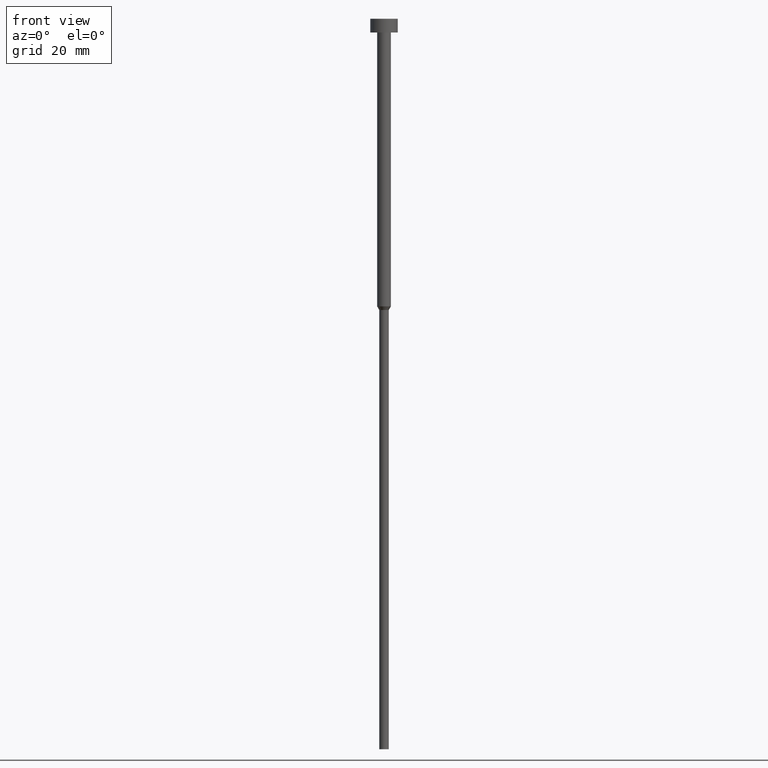
[diagram: clean part render]
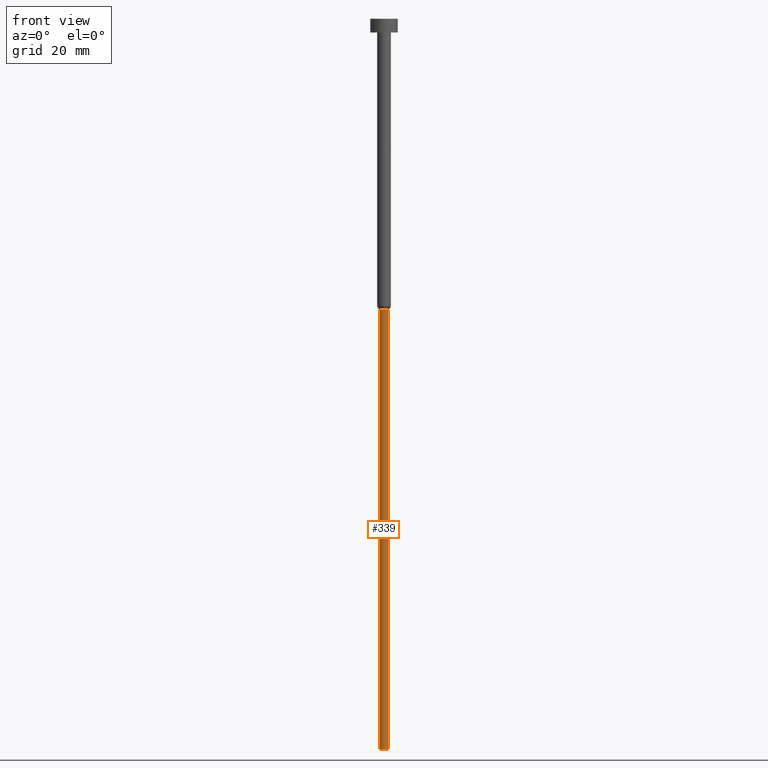
[diagram: same view with one face highlighted and labeled with its STEP entity id]
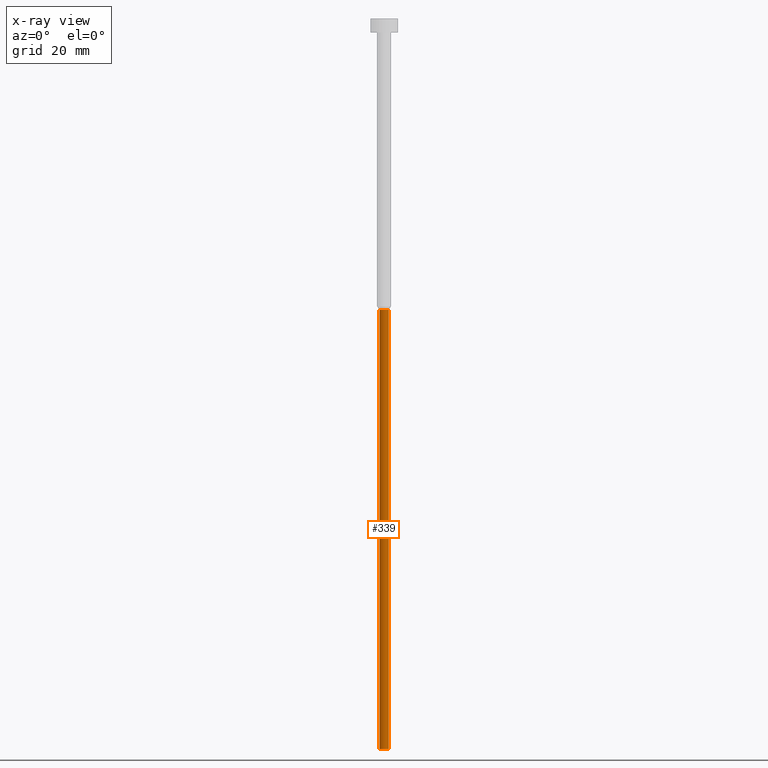
[diagram: x-ray of the same camera — body ghosted, the highlighted face saturated]
A machine part, front view. The second image highlights one B-rep face of the part: STEP entity #339.
The next image is the same camera in x-ray: the body ghosted, the highlighted face saturated — about 0% of this face is hidden behind the body in this view.
In plain terms, the highlighted cylindrical surface (edge-blend (fillet) strip) has radius 1.05 mm, axis along (-0, -0, 1).
Its self-contained STEP definition (entity closure, byte-faithful):
#2 = EDGE_CURVE ( 'NONE', #33, #271, #21, .T. ) ;
#21 = LINE ( 'NONE', #274, #55 ) ;
#28 = AXIS2_PLACEMENT_3D ( 'NONE', #126, #259, #327 ) ;
#33 = VERTEX_POINT ( 'NONE', #207 ) ;
#45 = CARTESIAN_POINT ( 'NONE',  ( 1.050000000000000044, 0.000000000000000000, -160.0000000000000000 ) ) ;
#50 = ORIENTED_EDGE ( 'NONE', *, *, #161, .F. ) ;
#55 = VECTOR ( 'NONE', #108, 1000.000000000000000 ) ;
#68 = AXIS2_PLACEMENT_3D ( 'NONE', #231, #180, #349 ) ;
#82 = ORIENTED_EDGE ( 'NONE', *, *, #2, .F. ) ;
#102 = ORIENTED_EDGE ( 'NONE', *, *, #283, .T. ) ;
#108 = DIRECTION ( 'NONE',  ( -0.000000000000000000, -0.000000000000000000, 1.000000000000000000 ) ) ;
#126 = CARTESIAN_POINT ( 'NONE',  ( 0.000000000000000000, 0.000000000000000000, 0.000000000000000000 ) ) ;
#132 = VERTEX_POINT ( 'NONE', #338 ) ;
#161 = EDGE_CURVE ( 'NONE', #271, #132, #184, .T. ) ;
#166 = LINE ( 'NONE', #201, #254 ) ;
#171 = EDGE_LOOP ( 'NONE', ( #82, #236, #102, #50 ) ) ;
#180 = DIRECTION ( 'NONE',  ( -0.000000000000000000, -0.000000000000000000, 1.000000000000000000 ) ) ;
#184 = CIRCLE ( 'NONE', #68, 1.050000000000000044 ) ;
#196 = VERTEX_POINT ( 'NONE', #45 ) ;
#201 = CARTESIAN_POINT ( 'NONE',  ( 1.050000000000000044, 0.000000000000000000, 0.000000000000000000 ) ) ;
#207 = CARTESIAN_POINT ( 'NONE',  ( -1.050000000000000044, 1.285879139104720978E-16, -160.0000000000000000 ) ) ;
#215 = CARTESIAN_POINT ( 'NONE',  ( -1.050000000000000044, 1.285879139104720978E-16, -63.77942286340599054 ) ) ;
#229 = FACE_OUTER_BOUND ( 'NONE', #171, .T. ) ;
#231 = CARTESIAN_POINT ( 'NONE',  ( 0.000000000000000000, 0.000000000000000000, -63.77942286340599054 ) ) ;
#235 = DIRECTION ( 'NONE',  ( -0.000000000000000000, -0.000000000000000000, 1.000000000000000000 ) ) ;
#236 = ORIENTED_EDGE ( 'NONE', *, *, #321, .T. ) ;
#254 = VECTOR ( 'NONE', #235, 1000.000000000000000 ) ;
#259 = DIRECTION ( 'NONE',  ( -0.000000000000000000, -0.000000000000000000, 1.000000000000000000 ) ) ;
#265 = AXIS2_PLACEMENT_3D ( 'NONE', #319, #286, #325 ) ;
#268 = CYLINDRICAL_SURFACE ( 'NONE', #28, 1.050000000000000044 ) ;
#271 = VERTEX_POINT ( 'NONE', #215 ) ;
#274 = CARTESIAN_POINT ( 'NONE',  ( -1.050000000000000044, 1.285879139104720978E-16, 0.000000000000000000 ) ) ;
#283 = EDGE_CURVE ( 'NONE', #196, #132, #166, .T. ) ;
#286 = DIRECTION ( 'NONE',  ( -0.000000000000000000, -0.000000000000000000, 1.000000000000000000 ) ) ;
#287 = CIRCLE ( 'NONE', #265, 1.050000000000000044 ) ;
#319 = CARTESIAN_POINT ( 'NONE',  ( 0.000000000000000000, 0.000000000000000000, -160.0000000000000000 ) ) ;
#321 = EDGE_CURVE ( 'NONE', #33, #196, #287, .T. ) ;
#325 = DIRECTION ( 'NONE',  ( 1.000000000000000000, 0.000000000000000000, 0.000000000000000000 ) ) ;
#327 = DIRECTION ( 'NONE',  ( 1.000000000000000000, 0.000000000000000000, 0.000000000000000000 ) ) ;
#338 = CARTESIAN_POINT ( 'NONE',  ( 1.050000000000000044, 0.000000000000000000, -63.77942286340599054 ) ) ;
#339 = ADVANCED_FACE ( 'NONE', ( #229 ), #268, .T. ) ;
#349 = DIRECTION ( 'NONE',  ( 1.000000000000000000, 0.000000000000000000, 0.000000000000000000 ) ) ;